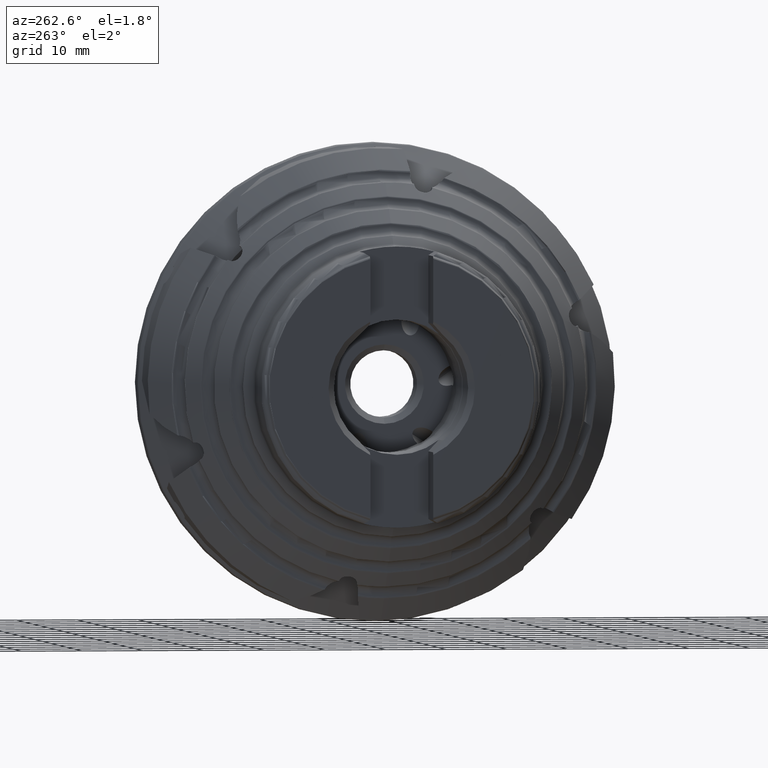
[diagram: clean part render]
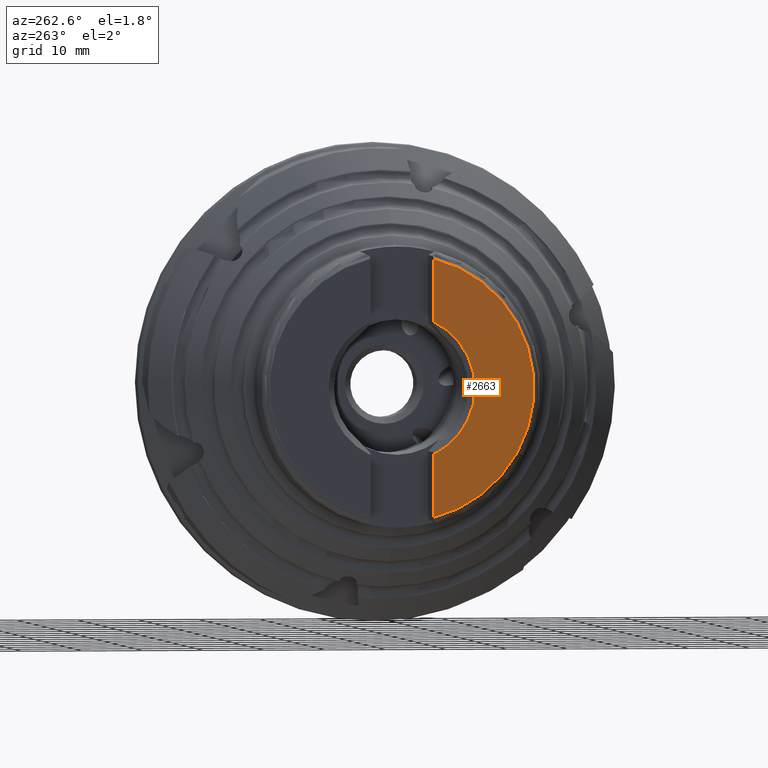
[diagram: same view with one face highlighted and labeled with its STEP entity id]
A machine part, auxiliary view. The second image highlights one B-rep face of the part: STEP entity #2663.
In plain terms, the highlighted planar face has unit normal (-1, 0, 0).
Its self-contained STEP definition (entity closure, byte-faithful):
#258 = CARTESIAN_POINT ( 'NONE',  ( -43.64999999999999900, -5.200000000000000200, -10.89796425943854400 ) ) ;
#336 = VERTEX_POINT ( 'NONE', #258 ) ;
#917 = CIRCLE ( 'NONE', #6153, 12.07499999999999600 ) ;
#965 = FACE_OUTER_BOUND ( 'NONE', #5043, .T. ) ;
#1226 = CARTESIAN_POINT ( 'NONE',  ( -43.65000000000000600, 21.78999999999999200, 0.0000000000000000000 ) ) ;
#1228 = PLANE ( 'NONE',  #6110 ) ;
#1230 = DIRECTION ( 'NONE',  ( -1.000000000000000000, 0.0000000000000000000, 0.0000000000000000000 ) ) ;
#1231 = DIRECTION ( 'NONE',  ( 0.0000000000000000000, 0.0000000000000000000, 1.000000000000000000 ) ) ;
#1658 = VERTEX_POINT ( 'NONE', #11688 ) ;
#1679 = VERTEX_POINT ( 'NONE', #11683 ) ;
#1917 = VERTEX_POINT ( 'NONE', #8000 ) ;
#2149 = CARTESIAN_POINT ( 'NONE',  ( -43.64999999999999900, 0.0000000000000000000, 0.0000000000000000000 ) ) ;
#2150 = DIRECTION ( 'NONE',  ( 1.000000000000000000, -0.0000000000000000000, -0.0000000000000000000 ) ) ;
#2151 = DIRECTION ( 'NONE',  ( 0.0000000000000000000, 0.0000000000000000000, -1.000000000000000000 ) ) ;
#2663 = ADVANCED_FACE ( 'NONE', ( #965 ), #1228, .T. ) ;
#3079 = ORIENTED_EDGE ( 'NONE', *, *, #5588, .F. ) ;
#3195 = ORIENTED_EDGE ( 'NONE', *, *, #11638, .F. ) ;
#3215 = ORIENTED_EDGE ( 'NONE', *, *, #11532, .F. ) ;
#3223 = ORIENTED_EDGE ( 'NONE', *, *, #5544, .T. ) ;
#5043 = EDGE_LOOP ( 'NONE', ( #3195, #3079, #3215, #3223 ) ) ;
#5544 = EDGE_CURVE ( 'NONE', #1658, #336, #917, .T. ) ;
#5588 = EDGE_CURVE ( 'NONE', #1679, #1917, #5981, .T. ) ;
#5631 = LINE ( 'NONE', #11236, #5633 ) ;
#5633 = VECTOR ( 'NONE', #11240, 1000.000000000000000 ) ;
#5981 = CIRCLE ( 'NONE', #6167, 21.78999999999999200 ) ;
#6110 = AXIS2_PLACEMENT_3D ( 'NONE', #1226, #1230, #1231 ) ;
#6153 = AXIS2_PLACEMENT_3D ( 'NONE', #2149, #2150, #2151 ) ;
#6167 = AXIS2_PLACEMENT_3D ( 'NONE', #10518, #10519, #10520 ) ;
#8000 = CARTESIAN_POINT ( 'NONE',  ( -43.64999999999999900, -5.200000000000000200, -21.16043714104223700 ) ) ;
#9302 = CARTESIAN_POINT ( 'NONE',  ( -43.64999999999999900, -5.200000000000000200, -29.99999999999999600 ) ) ;
#9303 = DIRECTION ( 'NONE',  ( -0.0000000000000000000, -0.0000000000000000000, 1.000000000000000000 ) ) ;
#10518 = CARTESIAN_POINT ( 'NONE',  ( -43.65000000000000600, 0.0000000000000000000, 0.0000000000000000000 ) ) ;
#10519 = DIRECTION ( 'NONE',  ( 1.000000000000000000, -0.0000000000000000000, -0.0000000000000000000 ) ) ;
#10520 = DIRECTION ( 'NONE',  ( 0.0000000000000000000, 0.0000000000000000000, -1.000000000000000000 ) ) ;
#11236 = CARTESIAN_POINT ( 'NONE',  ( -43.64999999999999900, -5.200000000000000200, -29.99999999999999600 ) ) ;
#11240 = DIRECTION ( 'NONE',  ( -0.0000000000000000000, -0.0000000000000000000, 1.000000000000000000 ) ) ;
#11532 = EDGE_CURVE ( 'NONE', #1658, #1679, #5631, .T. ) ;
#11638 = EDGE_CURVE ( 'NONE', #1917, #336, #11916, .T. ) ;
#11683 = CARTESIAN_POINT ( 'NONE',  ( -43.64999999999999900, -5.200000000000000200, 21.16043714104224100 ) ) ;
#11688 = CARTESIAN_POINT ( 'NONE',  ( -43.64999999999999900, -5.200000000000000200, 10.89796425943854400 ) ) ;
#11887 = VECTOR ( 'NONE', #9303, 1000.000000000000000 ) ;
#11916 = LINE ( 'NONE', #9302, #11887 ) ;